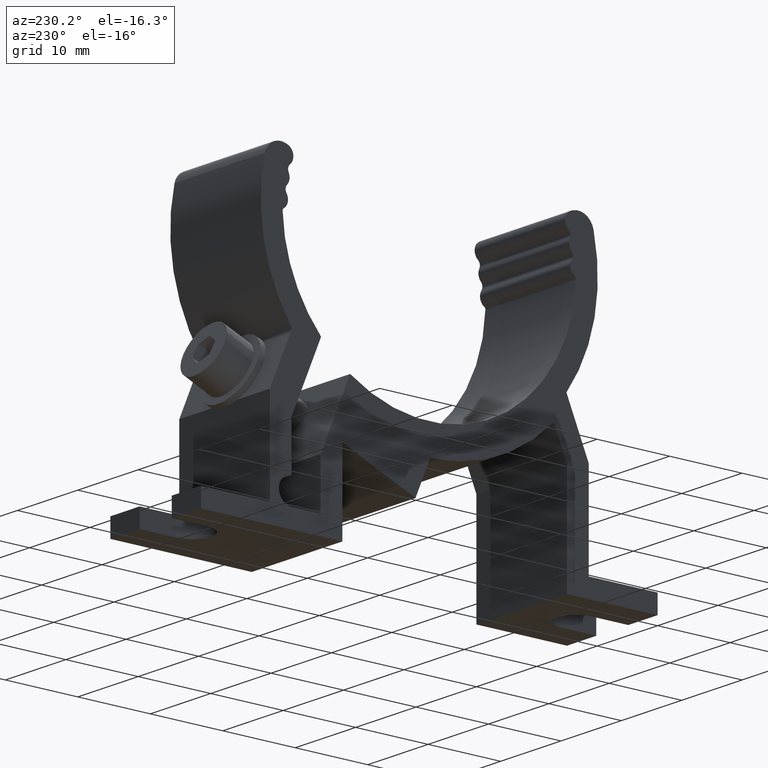
[diagram: clean part render]
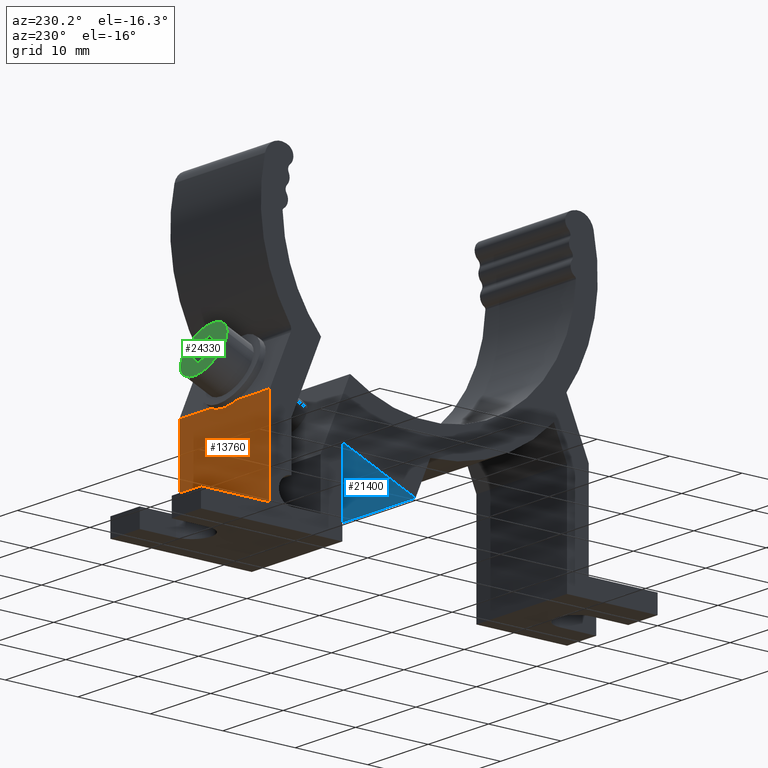
[diagram: same view with three faces highlighted in distinct colors, each labeled with its STEP entity id]
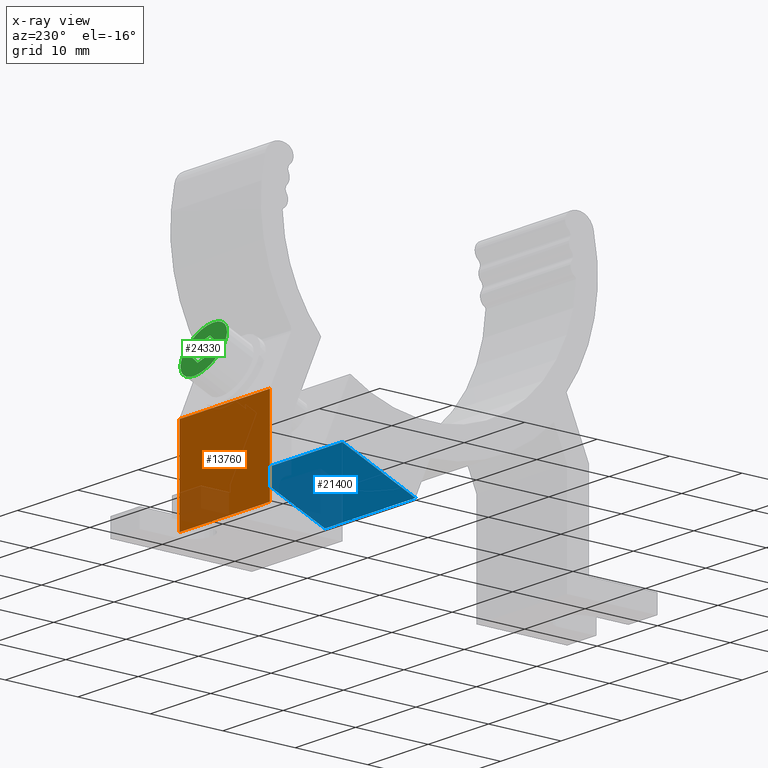
[diagram: x-ray of the same camera — body ghosted, the three highlighted faces saturated]
A machine part, auxiliary view with three faces highlighted in distinct colors.
The next image is the same camera in x-ray (body ghosted, the three faces saturated) — at least one of them is partly hidden behind the body in this view.
Their STEP definitions:

[orange] entity #13760 — the highlighted planar face has unit normal (0, 1, 0).
#2970=CARTESIAN_POINT('',(22.4688773541871,-34.3546058241429,
-7.49999999999993));
#2980=VERTEX_POINT('',#2970);
#3010=CARTESIAN_POINT('',(22.4688773541871,0.,-7.49999999999993));
#3020=DIRECTION('',(0.,1.,0.));
#3030=VECTOR('',#3020,1.);
#3040=LINE('',#3010,#3030);
#3050=CARTESIAN_POINT('',(22.4688773541871,-21.8546058241429,
-7.49999999999993));
#3060=VERTEX_POINT('',#3050);
#3070=EDGE_CURVE('',#2980,#3060,#3040,.T.);
#8280=CARTESIAN_POINT('',(22.4688773541871,-21.8546058241429,
7.50000000000007));
#8290=VERTEX_POINT('',#8280);
#8320=CARTESIAN_POINT('',(22.4688773541871,0.,7.50000000000007));
#8330=DIRECTION('',(0.,1.,0.));
#8340=VECTOR('',#8330,1.);
#8350=LINE('',#8320,#8340);
#8360=CARTESIAN_POINT('',(22.4688773541871,-34.3546058241429,
7.50000000000007));
#8370=VERTEX_POINT('',#8360);
#8380=EDGE_CURVE('',#8370,#8290,#8350,.T.);
#12520=CARTESIAN_POINT('',(22.4688773541871,-21.8546058241429,0.));
#12530=DIRECTION('',(0.,0.,-1.));
#12540=VECTOR('',#12530,1.);
#12550=LINE('',#12520,#12540);
#12560=CARTESIAN_POINT('',(22.4688773541871,-21.8546058241429,
2.16209619038084));
#12570=VERTEX_POINT('',#12560);
#12580=EDGE_CURVE('',#8290,#12570,#12550,.T.);
#13300=CARTESIAN_POINT('',(22.4688773541871,-21.8546058241429,
-2.162096190381));
#13310=VERTEX_POINT('',#13300);
#13410=EDGE_CURVE('',#13310,#3060,#12550,.T.);
#13530=CARTESIAN_POINT('',(22.4688773541871,-34.3546058241429,
-7.49999999999993));
#13540=DIRECTION('',(1.,-0.,0.));
#13550=DIRECTION('',(0.,0.,-1.));
#13560=AXIS2_PLACEMENT_3D('',#13530,#13540,#13550);
#13570=PLANE('',#13560);
#13580=ORIENTED_EDGE('',*,*,#12580,.F.);
#13590=CARTESIAN_POINT('',(22.4688773541871,-21.8546058241429,0.));
#13600=DIRECTION('',(0.,0.,1.));
#13610=VECTOR('',#13600,1.);
#13620=LINE('',#13590,#13610);
#13630=EDGE_CURVE('',#13310,#12570,#13620,.T.);
#13640=ORIENTED_EDGE('',*,*,#13630,.T.);
#13650=ORIENTED_EDGE('',*,*,#13410,.F.);
#13660=ORIENTED_EDGE('',*,*,#3070,.T.);
#13670=CARTESIAN_POINT('',(22.4688773541871,-34.3546058241429,0.));
#13680=DIRECTION('',(0.,0.,1.));
#13690=VECTOR('',#13680,1.);
#13700=LINE('',#13670,#13690);
#13710=EDGE_CURVE('',#2980,#8370,#13700,.T.);
#13720=ORIENTED_EDGE('',*,*,#13710,.F.);
#13730=ORIENTED_EDGE('',*,*,#8380,.F.);
#13740=EDGE_LOOP('',(#13730,#13720,#13660,#13650,#13640,#13580));
#13750=FACE_OUTER_BOUND('',#13740,.T.);
#13760=ADVANCED_FACE('',(#13750),#13570,.T.);

[blue] entity #21400 — the highlighted planar face has unit normal (0, 0.3907, -0.9205).
#2730=CARTESIAN_POINT('',(2.371094471587,-30.1720729414895,
-7.49999999999993));
#2740=VERTEX_POINT('',#2730);
#2770=CARTESIAN_POINT('',(0.,-31.178542831532,-7.49999999999993));
#2780=DIRECTION('',(-0.92050485345244,-0.390731128489274,0.));
#2790=VECTOR('',#2780,1.);
#2800=LINE('',#2770,#2790);
#2810=CARTESIAN_POINT('',(12.4688773541871,-25.8858184082733,
-7.49999999999993));
#2820=VERTEX_POINT('',#2810);
#2830=EDGE_CURVE('',#2820,#2740,#2800,.T.);
#8590=CARTESIAN_POINT('',(12.4688773541871,-25.8858184082733,
7.50000000000007));
#8600=VERTEX_POINT('',#8590);
#8630=CARTESIAN_POINT('',(0.,-31.178542831532,7.50000000000007));
#8640=DIRECTION('',(0.92050485345244,0.390731128489274,0.));
#8650=VECTOR('',#8640,1.);
#8660=LINE('',#8630,#8650);
#8670=CARTESIAN_POINT('',(2.371094471587,-30.1720729414895,
7.50000000000007));
#8680=VERTEX_POINT('',#8670);
#8690=EDGE_CURVE('',#8680,#8600,#8660,.T.);
#12240=CARTESIAN_POINT('',(2.371094471587,-30.1720729414895,0.));
#12250=DIRECTION('',(0.,0.,1.));
#12260=VECTOR('',#12250,1.);
#12270=LINE('',#12240,#12260);
#12280=EDGE_CURVE('',#2740,#8680,#12270,.T.);
#21240=CARTESIAN_POINT('',(4.2121041784919,-29.3906106845109,
-7.49999999999993));
#21250=DIRECTION('',(0.390731128489274,-0.92050485345244,0.));
#21260=DIRECTION('',(0.92050485345244,0.390731128489274,0.));
#21270=AXIS2_PLACEMENT_3D('',#21240,#21250,#21260);
#21280=PLANE('',#21270);
#21290=CARTESIAN_POINT('',(12.4688773541871,-25.8858184082733,0.));
#21300=DIRECTION('',(0.,0.,1.));
#21310=VECTOR('',#21300,1.);
#21320=LINE('',#21290,#21310);
#21330=EDGE_CURVE('',#2820,#8600,#21320,.T.);
#21340=ORIENTED_EDGE('',*,*,#21330,.T.);
#21350=ORIENTED_EDGE('',*,*,#2830,.F.);
#21360=ORIENTED_EDGE('',*,*,#12280,.F.);
#21370=ORIENTED_EDGE('',*,*,#8690,.F.);
#21380=EDGE_LOOP('',(#21370,#21360,#21350,#21340));
#21390=FACE_OUTER_BOUND('',#21380,.T.);
#21400=ADVANCED_FACE('',(#21390),#21280,.T.);

[green] entity #24330 — the highlighted planar face has unit normal (0, 0.9205, 0.3907).
#17740=CARTESIAN_POINT('',(25.8796044506113,-17.6051129302452,
3.22176698708347));
#17750=VERTEX_POINT('',#17740);
#17830=CARTESIAN_POINT('',(24.8109087472177,-15.08742362906,
-3.22176698708361));
#17840=VERTEX_POINT('',#17830);
#17870=CARTESIAN_POINT('',(25.3452565989145,-16.3462682796526,
-7.16781450117237E-14));
#17880=DIRECTION('',(0.92050485345244,0.390731128489274,
5.82867087928207E-16));
#17890=DIRECTION('',(0.152670814770501,-0.359669900169327,
0.92050485345244));
#17900=AXIS2_PLACEMENT_3D('',#17870,#17880,#17890);
#17910=CIRCLE('',#17900,3.5);
#17920=EDGE_CURVE('',#17840,#17750,#17910,.T.);
#23730=CARTESIAN_POINT('',(25.3452565989145,-16.3462682796526,
-7.16781450117237E-14));
#23740=DIRECTION('',(0.92050485345244,0.390731128489274,
1.38777878078145E-16));
#23750=DIRECTION('',(-0.152670814770502,0.359669900169326,
-0.92050485345244));
#23760=AXIS2_PLACEMENT_3D('',#23730,#23740,#23750);
#23770=PLANE('',#23760);
#23780=EDGE_CURVE('',#17750,#17840,#17910,.T.);
#23790=ORIENTED_EDGE('',*,*,#23780,.T.);
#23800=ORIENTED_EDGE('',*,*,#17920,.T.);
#23810=EDGE_LOOP('',(#23800,#23790));
#23820=FACE_OUTER_BOUND('',#23810,.T.);
#23830=CARTESIAN_POINT('',(24.7085443746648,-14.846268279805,0.));
#23840=DIRECTION('',(0.152670814734057,-0.359669900083468,
0.920504853492032));
#23850=VECTOR('',#23840,1.);
#23860=LINE('',#23830,#23850);
#23870=CARTESIAN_POINT('',(24.6735349447909,-14.7637912316104,
-0.211083894167323));
#23880=VERTEX_POINT('',#23870);
#23890=CARTESIAN_POINT('',(24.9379685527474,-15.3867577725181,
1.38327728060755));
#23900=VERTEX_POINT('',#23890);
#23910=EDGE_CURVE('',#23880,#23900,#23860,.T.);
#23920=ORIENTED_EDGE('',*,*,#23910,.F.);
#23930=CARTESIAN_POINT('',(18.4066773751961,0.,-0.669135893366473));
#23940=DIRECTION('',(0.387818677935589,-0.913643549925196,
0.121869342840509));
#23950=VECTOR('',#23940,1.);
#23960=LINE('',#23930,#23950);
#23970=CARTESIAN_POINT('',(25.6096902068747,-16.9692348205689,
1.59436117423535));
#23980=VERTEX_POINT('',#23970);
#23990=EDGE_CURVE('',#23900,#23980,#23960,.T.);
#24000=ORIENTED_EDGE('',*,*,#23990,.F.);
#24010=CARTESIAN_POINT('',(26.0791291673394,-18.0751637061895,0.));
#24020=DIRECTION('',(0.235147863315517,-0.553973650110261,
-0.798635509704934));
#24030=VECTOR('',#24020,1.);
#24040=LINE('',#24010,#24030);
#24050=CARTESIAN_POINT('',(26.0169782532669,-17.9287453282338,
0.211083895209672));
#24060=VERTEX_POINT('',#24050);
#24070=EDGE_CURVE('',#23980,#24060,#24040,.T.);
#24080=ORIENTED_EDGE('',*,*,#24070,.F.);
#24090=CARTESIAN_POINT('',(25.9819688232388,-17.8462682796759,0.));
#24100=DIRECTION('',(-0.152670814734056,0.359669900083466,
-0.920504853492033));
#24110=VECTOR('',#24100,1.);
#24120=LINE('',#24090,#24110);
#24130=CARTESIAN_POINT('',(25.7525446453223,-17.3057787873543,
-1.38327727960564));
#24140=VERTEX_POINT('',#24130);
#24150=EDGE_CURVE('',#24060,#24140,#24120,.T.);
#24160=ORIENTED_EDGE('',*,*,#24150,.F.);
#24170=CARTESIAN_POINT('',(18.4066773751961,0.,-3.6916653798346));
#24180=DIRECTION('',(-0.387818677907294,0.913643549858538,
-0.121869343430284));
#24190=VECTOR('',#24180,1.);
#24200=LINE('',#24170,#24190);
#24210=CARTESIAN_POINT('',(25.0808229910175,-15.7233017388851,
-1.59436117430406));
#24220=VERTEX_POINT('',#24210);
#24230=EDGE_CURVE('',#24140,#24220,#24200,.T.);
#24240=ORIENTED_EDGE('',*,*,#24230,.F.);
#24250=CARTESIAN_POINT('',(24.6113840311022,-14.6173728545588,0.));
#24260=DIRECTION('',(-0.235147863130095,0.553973649673433,
0.798635510062536));
#24270=VECTOR('',#24260,1.);
#24280=LINE('',#24250,#24270);
#24290=EDGE_CURVE('',#24220,#23880,#24280,.T.);
#24300=ORIENTED_EDGE('',*,*,#24290,.F.);
#24310=EDGE_LOOP('',(#24300,#24240,#24160,#24080,#24000,#23920));
#24320=FACE_BOUND('',#24310,.T.);
#24330=ADVANCED_FACE('',(#23820,#24320),#23770,.T.);